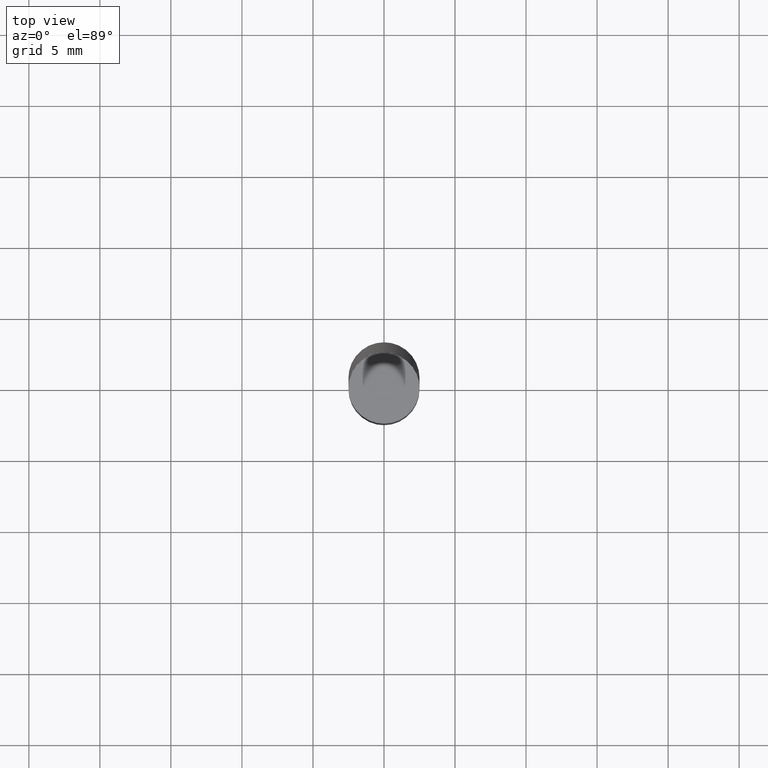
[diagram: clean part render]
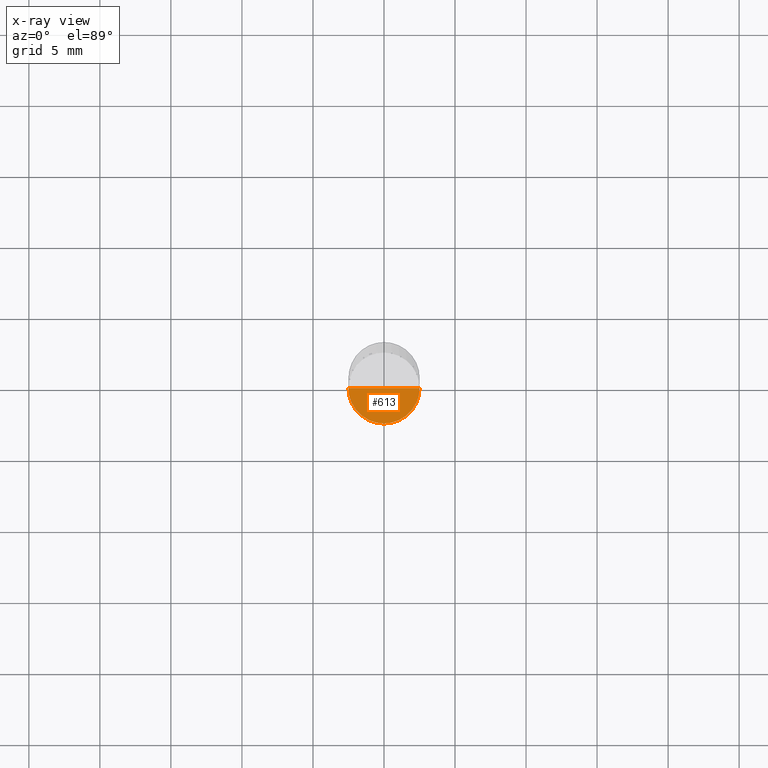
[diagram: x-ray — body ghosted, one internal face saturated and labeled with its STEP entity id]
A machine part, top view, then the same camera in x-ray: the body is ghosted and one INTERNAL B-rep face — a face not visible from any outside direction — is saturated and labeled: STEP entity #613.
In plain terms, the highlighted face is a freeform B-spline surface patch.
Its self-contained STEP definition (entity closure, byte-faithful):
#464=CARTESIAN_POINT('',(2.5,0.0,-5.0));
#468=CARTESIAN_POINT('',(-2.5,0.0,-5.0));
#469=CARTESIAN_POINT('',(0.0,0.0,-5.0));
#476=CARTESIAN_POINT('',(-2.5,-2.5,-5.0));
#477=CARTESIAN_POINT('',(0.0,-2.5,-5.0));
#478=CARTESIAN_POINT('',(2.5,-2.5,-5.0));
#598=(
BOUNDED_SURFACE()
B_SPLINE_SURFACE(1,2,(
(#468,#476,#477,#478,#464),
(#469,#469,#469,#469,#469)
), .UNSPECIFIED.,.F.,.F.,.F.)
B_SPLINE_SURFACE_WITH_KNOTS((2,2),(3,2,3),(
0.0,1.0),(
0.0,0.5,1.0), .UNSPECIFIED.)
GEOMETRIC_REPRESENTATION_ITEM()
RATIONAL_B_SPLINE_SURFACE(((1.0,0.707106781187,1.0,0.707106781187,1.0),
(1.0,0.707106781187,1.0,0.707106781187,1.0)
))
REPRESENTATION_ITEM('')
SURFACE()
);
#599=(
BOUNDED_CURVE()
B_SPLINE_CURVE(2,(#464,#478,#477,#476,#468),.UNSPECIFIED.,.F.,.F.)
B_SPLINE_CURVE_WITH_KNOTS((3,2,3),
(0.0,0.5,1.0),.UNSPECIFIED.)
CURVE()
GEOMETRIC_REPRESENTATION_ITEM()
RATIONAL_B_SPLINE_CURVE((1.0,0.707106781187,1.0,0.707106781187,1.0))
REPRESENTATION_ITEM('')
);
#600=(
BOUNDED_CURVE()
B_SPLINE_CURVE(1,(#468,#469),.UNSPECIFIED.,.F.,.F.)
B_SPLINE_CURVE_WITH_KNOTS((2,2),
(0.0,1.0),.UNSPECIFIED.)
CURVE()
GEOMETRIC_REPRESENTATION_ITEM()
RATIONAL_B_SPLINE_CURVE((1.0,1.0))
REPRESENTATION_ITEM('')
);
#601=(
BOUNDED_CURVE()
B_SPLINE_CURVE(1,(#469,#464),.UNSPECIFIED.,.F.,.F.)
B_SPLINE_CURVE_WITH_KNOTS((2,2),
(0.0,1.0),.UNSPECIFIED.)
CURVE()
GEOMETRIC_REPRESENTATION_ITEM()
RATIONAL_B_SPLINE_CURVE((1.0,1.0))
REPRESENTATION_ITEM('')
);
#602=VERTEX_POINT('',#464);
#603=VERTEX_POINT('',#468);
#604=VERTEX_POINT('',#469);
#605=EDGE_CURVE('',#602,#603,#599,.T.);
#606=EDGE_CURVE('',#603,#604,#600,.T.);
#607=EDGE_CURVE('',#604,#602,#601,.T.);
#608=ORIENTED_EDGE('',*,*,#605,.T.);
#609=ORIENTED_EDGE('',*,*,#606,.T.);
#610=ORIENTED_EDGE('',*,*,#607,.T.);
#611=EDGE_LOOP('',(#608,#609,#610));
#612=FACE_OUTER_BOUND('',#611,.T.);
#613=ADVANCED_FACE('',(#612),#598,.T.);